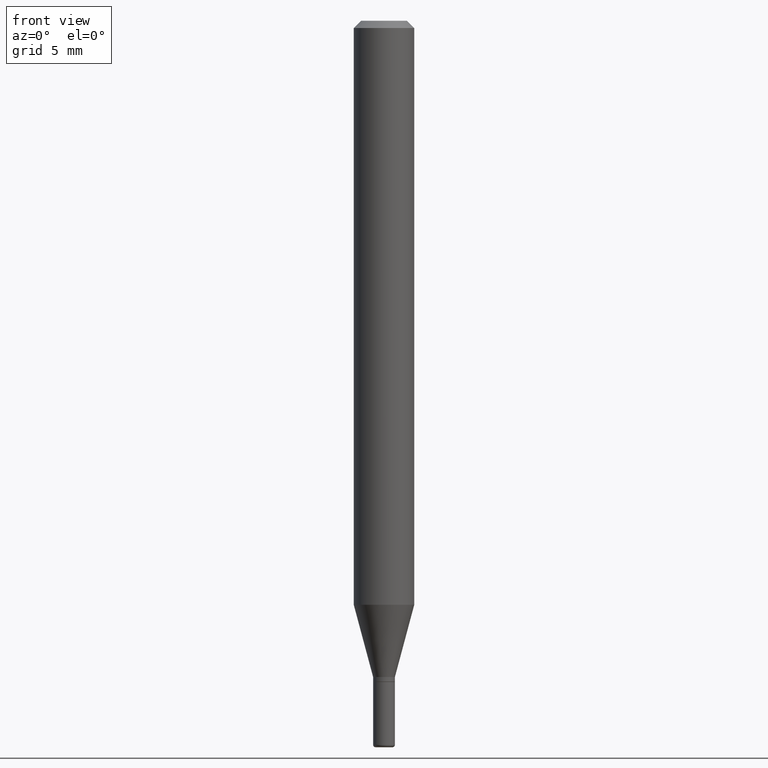
[diagram: clean part render]
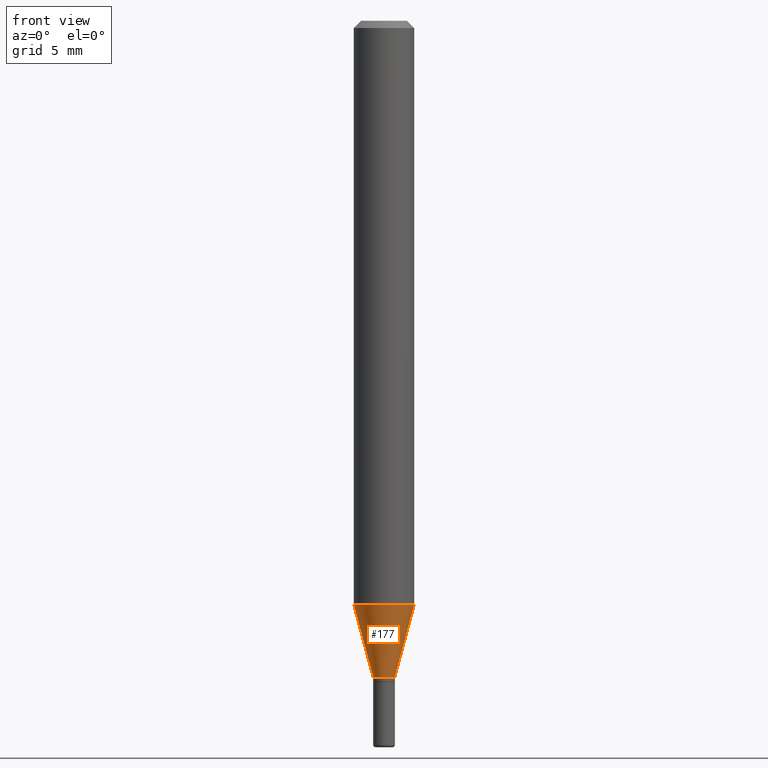
[diagram: same view with one face highlighted and labeled with its STEP entity id]
A machine part, front view. The second image highlights one B-rep face of the part: STEP entity #177.
In plain terms, the highlighted conical surface has half-angle 15 deg.
Its self-contained STEP definition (entity closure, byte-faithful):
#1 = DIRECTION ( 'NONE',  ( -2.445468806185136597E-29, 3.491481338843145583E-15, 1.000000000000000000 ) ) ;
#4 = CARTESIAN_POINT ( 'NONE',  ( 0.02250000000000007896, -4.888073874380405630E-15, -1.355000000000000426 ) ) ;
#24 = CARTESIAN_POINT ( 'NONE',  ( 0.06250000000000000000, -4.646176951478207651E-15, -1.205717967697245596 ) ) ;
#37 = CARTESIAN_POINT ( 'NONE',  ( -0.02250000000000007896, -4.571085098586440920E-15, -1.355000000000000426 ) ) ;
#48 = DIRECTION ( 'NONE',  ( -2.445468806185136597E-29, 3.491481338843145583E-15, 1.000000000000000000 ) ) ;
#56 = DIRECTION ( 'NONE',  ( 1.000000000000000000, -6.982962677686286432E-15, 0.000000000000000000 ) ) ;
#76 = CARTESIAN_POINT ( 'NONE',  ( 2.948545679060552191E-29, -4.209741784122815192E-15, -1.205717967697245596 ) ) ;
#84 = LINE ( 'NONE', #37, #149 ) ;
#91 = ORIENTED_EDGE ( 'NONE', *, *, #507, .T. ) ;
#98 = CIRCLE ( 'NONE', #330, 0.06250000000000000000 ) ;
#119 = CARTESIAN_POINT ( 'NONE',  ( 0.02250000000000007896, -4.888073874380405630E-15, -1.355000000000000426 ) ) ;
#121 = VERTEX_POINT ( 'NONE', #404 ) ;
#130 = VERTEX_POINT ( 'NONE', #442 ) ;
#149 = VECTOR ( 'NONE', #338, 39.37007874015748854 ) ;
#170 = VERTEX_POINT ( 'NONE', #4 ) ;
#174 = ORIENTED_EDGE ( 'NONE', *, *, #268, .F. ) ;
#177 = ADVANCED_FACE ( 'NONE', ( #511 ), #494, .T. ) ;
#178 = ORIENTED_EDGE ( 'NONE', *, *, #186, .F. ) ;
#186 = EDGE_CURVE ( 'NONE', #121, #130, #84, .T. ) ;
#207 = EDGE_LOOP ( 'NONE', ( #178, #91, #401, #174 ) ) ;
#215 = DIRECTION ( 'NONE',  ( 1.000000000000000000, -6.982962677686286432E-15, 0.000000000000000000 ) ) ;
#249 = AXIS2_PLACEMENT_3D ( 'NONE', #407, #48, #215 ) ;
#266 = EDGE_CURVE ( 'NONE', #170, #440, #467, .T. ) ;
#268 = EDGE_CURVE ( 'NONE', #130, #440, #98, .T. ) ;
#283 = DIRECTION ( 'NONE',  ( 0.2588190451025206840, 1.565188264969626504E-15, 0.9659258262890682012 ) ) ;
#307 = AXIS2_PLACEMENT_3D ( 'NONE', #477, #1, #56 ) ;
#329 = VECTOR ( 'NONE', #283, 39.37007874015748854 ) ;
#330 = AXIS2_PLACEMENT_3D ( 'NONE', #76, #459, #503 ) ;
#338 = DIRECTION ( 'NONE',  ( -0.2588190451025206840, 5.211531920934545520E-15, 0.9659258262890682012 ) ) ;
#350 = CIRCLE ( 'NONE', #307, 0.02250000000000007896 ) ;
#401 = ORIENTED_EDGE ( 'NONE', *, *, #266, .T. ) ;
#404 = CARTESIAN_POINT ( 'NONE',  ( -0.02250000000000007896, -4.168368836429596353E-15, -1.355000000000000426 ) ) ;
#407 = CARTESIAN_POINT ( 'NONE',  ( 3.313610232380861411E-29, -4.730957214132463998E-15, -1.355000000000000426 ) ) ;
#440 = VERTEX_POINT ( 'NONE', #24 ) ;
#442 = CARTESIAN_POINT ( 'NONE',  ( -0.06250000000000000000, -3.765652574272752576E-15, -1.205717967697245596 ) ) ;
#459 = DIRECTION ( 'NONE',  ( -2.445468806185136597E-29, 3.491481338843145583E-15, 1.000000000000000000 ) ) ;
#467 = LINE ( 'NONE', #119, #329 ) ;
#477 = CARTESIAN_POINT ( 'NONE',  ( 3.313610232380861411E-29, -4.730957214132463998E-15, -1.355000000000000426 ) ) ;
#494 = CONICAL_SURFACE ( 'NONE', #249, 0.02250000000000007896, 0.2617993877991494078 ) ;
#503 = DIRECTION ( 'NONE',  ( 1.000000000000000000, -6.982962677686270655E-15, 0.000000000000000000 ) ) ;
#507 = EDGE_CURVE ( 'NONE', #121, #170, #350, .T. ) ;
#511 = FACE_OUTER_BOUND ( 'NONE', #207, .T. ) ;